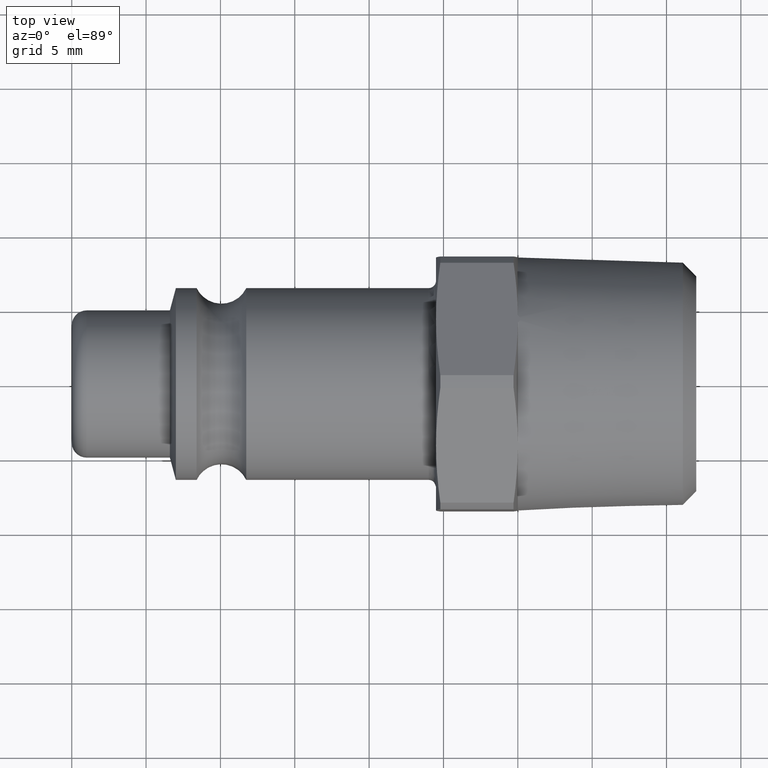
[diagram: clean part render]
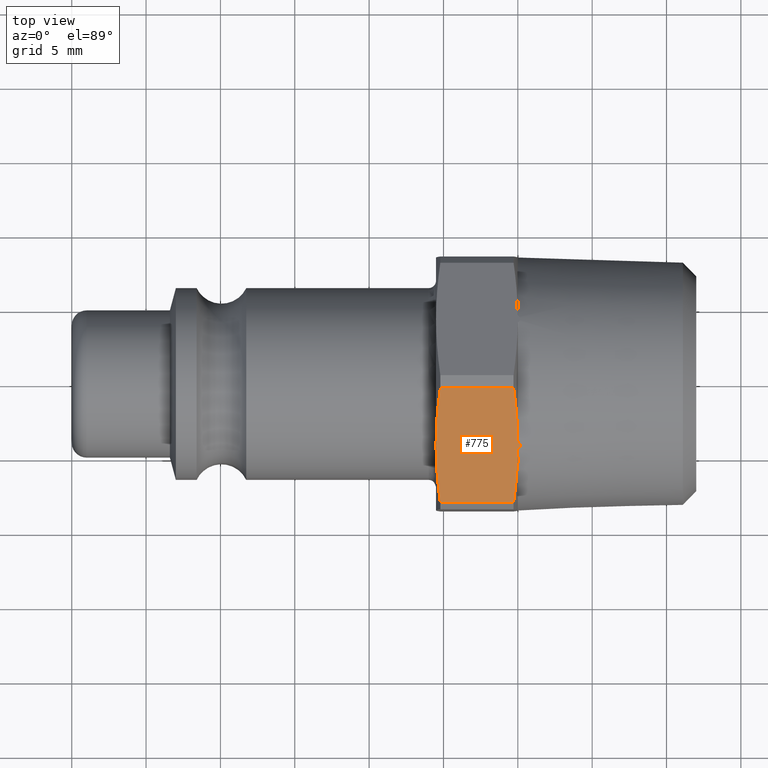
[diagram: same view with one face highlighted and labeled with its STEP entity id]
A machine part, top view. The second image highlights one B-rep face of the part: STEP entity #775.
In plain terms, the highlighted planar face has unit normal (0, 0.5, -0.866).
Its self-contained STEP definition (entity closure, byte-faithful):
#227=CARTESIAN_POINT('',(24.5,-4.249999999999998,7.361215932167731));
#228=VERTEX_POINT('',#227);
#347=CARTESIAN_POINT('',(30.0,-3.996695662435911,7.507461259647257));
#348=VERTEX_POINT('',#347);
#356=CARTESIAN_POINT('',(30.0,-4.503304337564086,7.214970604688205));
#357=VERTEX_POINT('',#356);
#358=CARTESIAN_POINT('',(30.0,-3.996695662435934,7.507461259647243));
#359=CARTESIAN_POINT('',(30.323676353333088,-4.25,7.361215932167731));
#360=CARTESIAN_POINT('',(30.0,-4.503304337564065,7.214970604688218));
#368=(BOUNDED_CURVE()B_SPLINE_CURVE(2,(#358,#359,#360),.UNSPECIFIED.,.F.,.U.)B_SPLINE_CURVE_WITH_KNOTS((3,3),(0.0,0.066860415325565),.UNSPECIFIED.)CURVE()GEOMETRIC_REPRESENTATION_ITEM()RATIONAL_B_SPLINE_CURVE((1.0,1.000591871786401,1.0))REPRESENTATION_ITEM(''));
#369=EDGE_CURVE('',#348,#357,#368,.T.);
#695=CARTESIAN_POINT('',(23.725998680709427,-4.249999999999998,7.361215932167731));
#696=DIRECTION('',(0.0,0.5,-0.866025403784439));
#697=DIRECTION('',(1.0,0.0,0.0));
#698=AXIS2_PLACEMENT_3D('',#695,#696,#697);
#699=PLANE('',#698);
#700=CARTESIAN_POINT('',(24.788045381863459,-8.067455795421864,5.15720680106142));
#701=VERTEX_POINT('',#700);
#702=CARTESIAN_POINT('',(24.788045381863459,-8.067455795421846,5.15720680106143));
#703=CARTESIAN_POINT('',(24.500000000000007,-6.045207427999245,6.324752440361152));
#704=CARTESIAN_POINT('',(24.500000000000007,-4.249999999999998,7.361215932167731));
#712=(BOUNDED_CURVE()B_SPLINE_CURVE(2,(#702,#703,#704),.UNSPECIFIED.,.F.,.U.)B_SPLINE_CURVE_WITH_KNOTS((3,3),(0.0,0.441955310884669),.UNSPECIFIED.)CURVE()GEOMETRIC_REPRESENTATION_ITEM()RATIONAL_B_SPLINE_CURVE((1.0,1.03113301475497,1.0))REPRESENTATION_ITEM(''));
#713=EDGE_CURVE('',#701,#228,#712,.T.);
#714=ORIENTED_EDGE('',*,*,#713,.F.);
#715=CARTESIAN_POINT('',(29.713302646458377,-8.067455795421868,5.157206801061419));
#716=VERTEX_POINT('',#715);
#717=CARTESIAN_POINT('',(29.713302646458374,-8.067455795421864,5.15720680106142));
#718=DIRECTION('',(-1.0,0.0,0.0));
#719=VECTOR('',#718,4.925257264594915);
#720=LINE('',#717,#719);
#721=EDGE_CURVE('',#716,#701,#720,.T.);
#722=ORIENTED_EDGE('',*,*,#721,.F.);
#723=CARTESIAN_POINT('',(30.0,-4.503304337564066,7.214970604688217));
#724=CARTESIAN_POINT('',(29.982160166443666,-6.179917528561929,6.246977527538723));
#725=CARTESIAN_POINT('',(29.713302646458377,-8.06745579542187,5.157206801061419));
#733=(BOUNDED_CURVE()B_SPLINE_CURVE(2,(#723,#724,#725),.UNSPECIFIED.,.F.,.U.)B_SPLINE_CURVE_WITH_KNOTS((3,3),(0.0,0.412719892440434),.UNSPECIFIED.)CURVE()GEOMETRIC_REPRESENTATION_ITEM()RATIONAL_B_SPLINE_CURVE((1.0,1.026959657015884,1.0))REPRESENTATION_ITEM(''));
#734=EDGE_CURVE('',#357,#716,#733,.T.);
#735=ORIENTED_EDGE('',*,*,#734,.F.);
#736=ORIENTED_EDGE('',*,*,#369,.F.);
#737=CARTESIAN_POINT('',(29.713302646458377,-0.432544204578129,9.565225063274042));
#738=VERTEX_POINT('',#737);
#739=CARTESIAN_POINT('',(29.713302646458377,-0.432544204578128,9.565225063274044));
#740=CARTESIAN_POINT('',(29.982160166443666,-2.320082471438069,8.475454336796737));
#741=CARTESIAN_POINT('',(30.0,-3.996695662435932,7.507461259647244));
#749=(BOUNDED_CURVE()B_SPLINE_CURVE(2,(#739,#740,#741),.UNSPECIFIED.,.F.,.U.)B_SPLINE_CURVE_WITH_KNOTS((3,3),(0.0,0.412719892440434),.UNSPECIFIED.)CURVE()GEOMETRIC_REPRESENTATION_ITEM()RATIONAL_B_SPLINE_CURVE((1.0,1.026959657015882,1.0))REPRESENTATION_ITEM(''));
#750=EDGE_CURVE('',#738,#348,#749,.T.);
#751=ORIENTED_EDGE('',*,*,#750,.F.);
#752=CARTESIAN_POINT('',(24.788045381863459,-0.432544204578131,9.565225063274042));
#753=VERTEX_POINT('',#752);
#754=CARTESIAN_POINT('',(24.788045381863459,-0.432544204578131,9.565225063274042));
#755=DIRECTION('',(1.0,0.0,0.0));
#756=VECTOR('',#755,4.925257264594915);
#757=LINE('',#754,#756);
#758=EDGE_CURVE('',#753,#738,#757,.T.);
#759=ORIENTED_EDGE('',*,*,#758,.F.);
#760=CARTESIAN_POINT('',(24.500000000000007,-4.249999999999998,7.361215932167731));
#761=CARTESIAN_POINT('',(24.500000000000007,-2.454792572000752,8.39767942397431));
#762=CARTESIAN_POINT('',(24.788045381863459,-0.432544204578148,9.565225063274031));
#770=(BOUNDED_CURVE()B_SPLINE_CURVE(2,(#760,#761,#762),.UNSPECIFIED.,.F.,.U.)B_SPLINE_CURVE_WITH_KNOTS((3,3),(0.441955310884669,0.883910621769338),.UNSPECIFIED.)CURVE()GEOMETRIC_REPRESENTATION_ITEM()RATIONAL_B_SPLINE_CURVE((1.0,1.031133014754964,1.0))REPRESENTATION_ITEM(''));
#771=EDGE_CURVE('',#228,#753,#770,.T.);
#772=ORIENTED_EDGE('',*,*,#771,.F.);
#773=EDGE_LOOP('',(#714,#722,#735,#736,#751,#759,#772));
#774=FACE_OUTER_BOUND('',#773,.T.);
#775=ADVANCED_FACE('',(#774),#699,.F.);